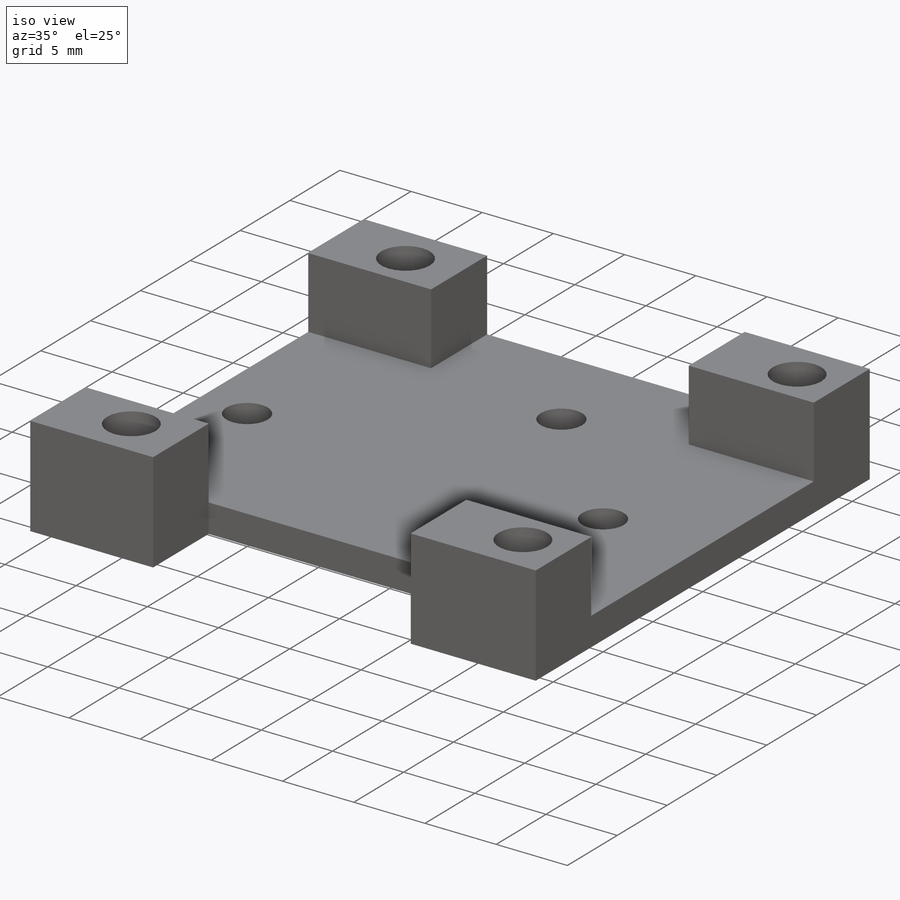
[diagram: iso view]
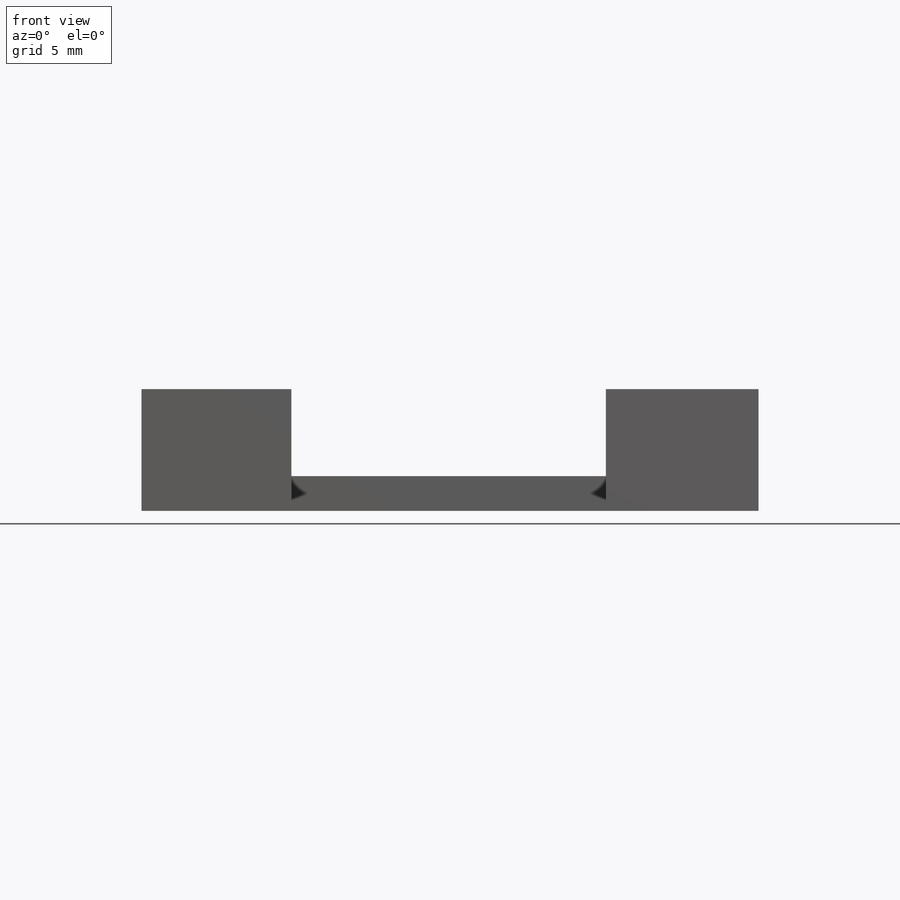
[diagram: front view]
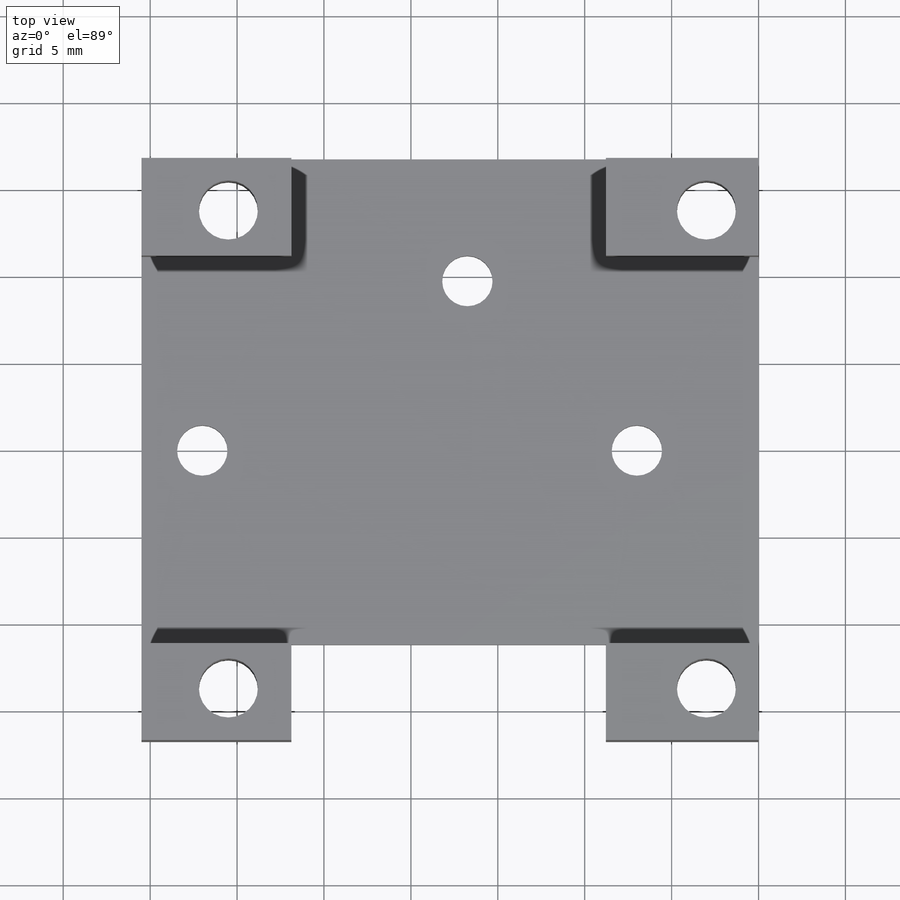
[diagram: top view]
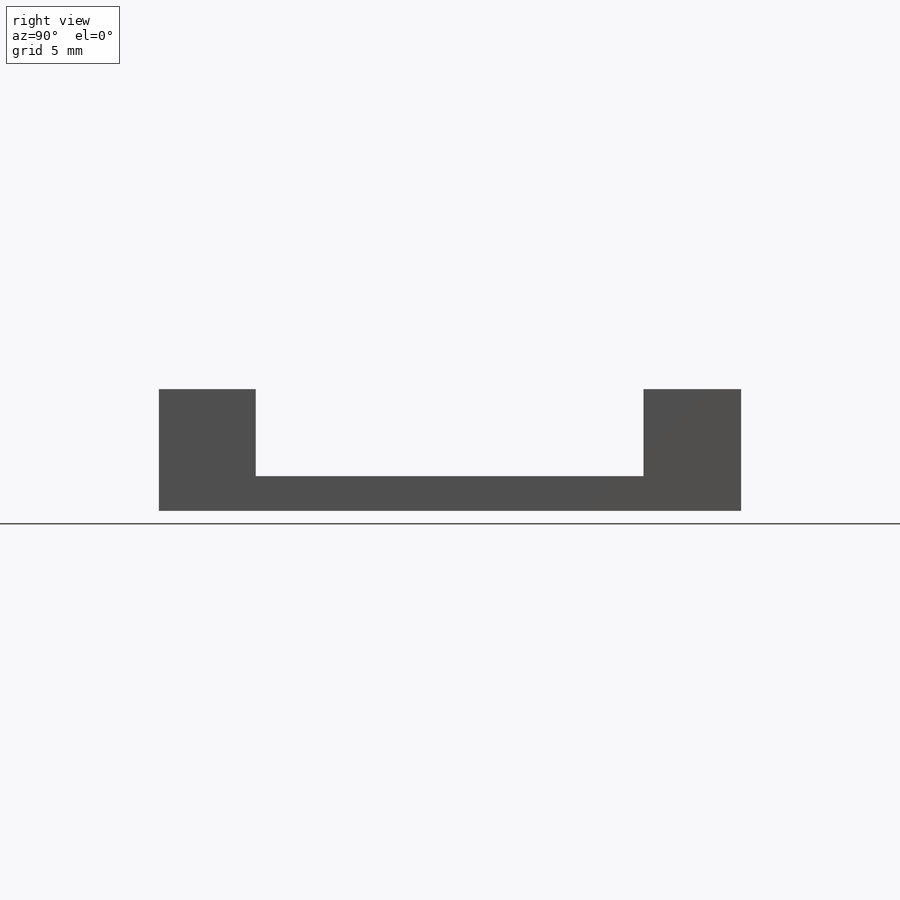
[diagram: right view]
SOLIDWORKS PART (.sldprt)
format: sldprt  version: not decoded by parser v0  size: 376,832 bytes
history: native  units: mm
features: sketch x14, cut_extrude x4, extrude x3, hole x3, material x1 (+12 scaffold rows collapsed)
feature tree (37):
  scaffold x12  (default folders/planes/origin — collapsed)
  material  "Material <not specified>"
  sketch  "Sketch1"  dims[D1=40.0mm D2=33.5mm]
  extrude  "Boss-Extrude1"  Depth=7mm
  hole  "M3 Clearance Hole1"  Diameter=3.4mm Depth=7mm
  sketch  "3DSketch1"  dims[c1.D1=9.5mm c1.D2=3.0mm c1.D3=3.0mm c1.D4=3.0mm c1.D5=~3.22109mm c1.D7=3.0mm c1.D6=~3.048805mm c2.D5=3.0mm c3.D5=~38.890873mm]
  sketch  "Sketch2"  dims[hole-wizard template sketch: 60 standard entries collapsed; hole parameters kept: c18.Thru Hole Depth=7.0mm]
  sketch  "Sketch3"
  sketch  "Sketch4"
  cut_extrude  "Cut-Extrude1"  Depth=5mm
  sketch  "Sketch5"
  cut_extrude  "Cut-Extrude2"  Depth=5mm
  hole  "M2.5 Clearance Hole2"  Diameter=2.9mm Depth=2mm
  sketch  "3DSketch3"  dims[c1.D1=~9.068463mm c1.D7=8.35mm c1.D2=~9.774123mm c1.D8=16.75mm c1.D3=~10.709112mm c2.D8=7.0mm c2.D4=~9.916312mm c3.D8=26.5mm c3.D5=~18.501527mm c4.D8=16.75mm c4.D6=~9.584476mm c5.D8=16.764mm c5.D1=8.0mm c5.D7=25.0mm c5.D4=26.5mm c6.D8=26.5mm c6.D4=~26.100766mm c7.D8=~26.100766mm c7.D4=7.0mm c7.D5=16.75mm c7.D2=16.75mm c7.D6=16.75mm c7.D3=7.0mm c8.D8=~14.707566mm c8.D9=~14.707566mm c9.D8=32.0mm]
  sketch  "Sketch8"  dims[hole-wizard template sketch: 60 standard entries collapsed; hole parameters kept: c18.Thru Hole Depth=2.0mm]
  sketch  "Sketch12"
  cut_extrude  "Cut-Extrude4"  [1 undecoded]
  sketch  "Sketch13"
  extrude  "Boss-Extrude2"  [1 undecoded]
  sketch  "Sketch14"  dims[D1=0.0mm D2=~5.616714mm D3=0.0mm]
  extrude  "Boss-Extrude3"  [1 undecoded]
  hole  "M3 Clearance Hole2"  Diameter=3.4mm Depth=7mm
  sketch  "Sketch16"  dims[D1=9.5mm D2=3.0mm D3=3.0mm D4=3.0mm D5=~38.890873mm]
  sketch  "Sketch15"  dims[hole-wizard template sketch: 60 standard entries collapsed; hole parameters kept: c18.Thru Hole Depth=7.0mm]
  sketch  "Sketch17"  dims[D1=4.5mm]
  cut_extrude  "Cut-Extrude5"  [1 undecoded]
decode coverage: 15 of 24 modeling features carry decoded parameters
note: ~ marks probable driven/reference dimensions
note: 4 parameter values undecoded
summary: no parameter record found for 4 features
note: suppression state not decoded; provenance and decode notes live in map.json
